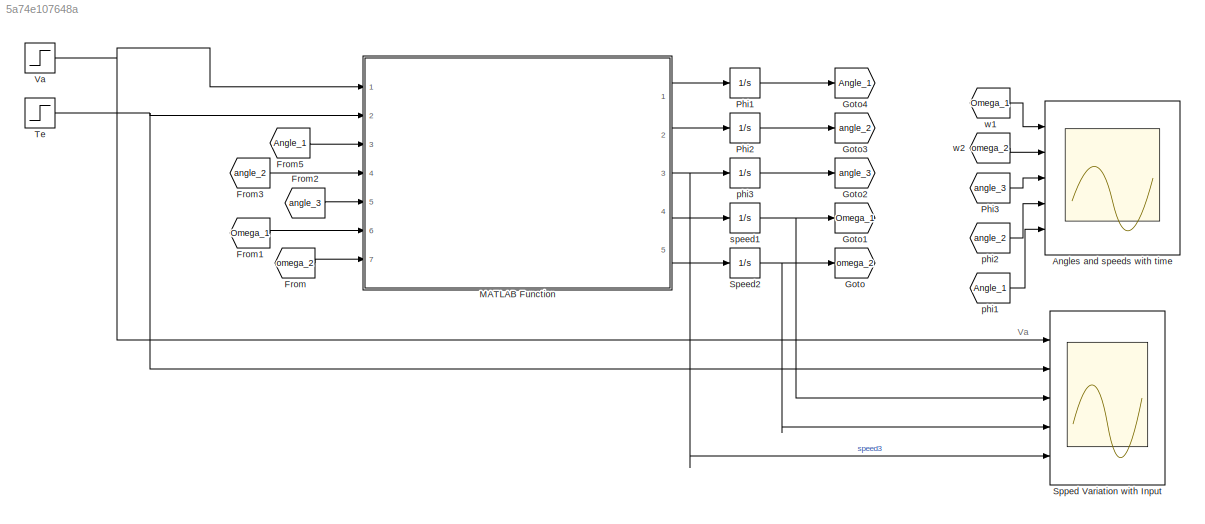
MODEL slx_5a74e107648a
KIND model
CONFIG AbsTol = auto
CONFIG EnableMultiTasking = off
CONFIG FixedStep = auto
CONFIG MaxStep = auto
CONFIG MinStep = auto
CONFIG RelTol = 1e-3
CONFIG SampleTimeConstraint = Unconstrained
CONFIG Solver = VariableStepAuto
CONFIG SolverName = VariableStepAuto
CONFIG StartTime = 0.0
CONFIG StopTime = 10
BLOCK [Scope] Angles and speeds with time
  Floating = off
  NumInputPorts = 5
  Ports = [5]
  ScopeSpecificationString = Simulink.scopes.TimeScopeBlockCfg('CurrentConfiguration', extmgr.ConfigurationSet(extmgr.Configuration('Core','General UI',true),extmgr.Configuration('Core','Source UI',true),extmgr.Configuration('Sources','WiredSimulink',true),extmgr.Configuration('Visuals','Time Domain',true,'SerializedDisplays',{struct('MinYLimReal','-16.99816','MaxYLimReal','48.28888','YLabelReal','','MinYLimMag','0.00000','Ma...<+1406ch>
BLOCK [From] From
  GotoTag = omega_2
BLOCK [From] From1
  GotoTag = Omega_1
BLOCK [From] From2
  GotoTag = angle_3
BLOCK [From] From3
  GotoTag = angle_2
BLOCK [From] From5
  GotoTag = Angle_1
BLOCK [Goto] Goto
  GotoTag = omega_2
BLOCK [Goto] Goto1
  GotoTag = Omega_1
BLOCK [Goto] Goto2
  GotoTag = angle_3
BLOCK [Goto] Goto3
  GotoTag = angle_2
BLOCK [Goto] Goto4
  GotoTag = Angle_1
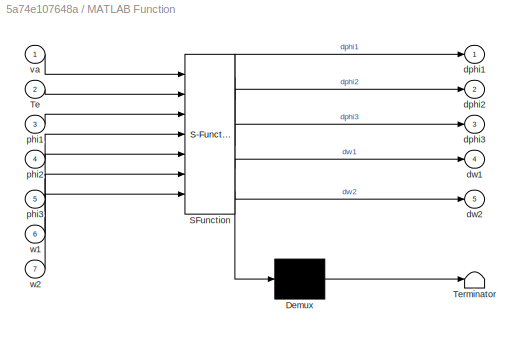
BLOCK [SubSystem] MATLAB Function
  ErrorFcn = Stateflow.Translate.translate
  PermitHierarchicalResolution = ExplicitOnly
  Ports = [7, 5]
  RequestExecContextInheritance = off
  SFBlockType = MATLAB Function
  TreatAsAtomicUnit = on
BLOCK [Demux] MATLAB Function/ Demux 
  Outputs = 1
  Ports = [1, 1]
BLOCK [S-Function] MATLAB Function/ SFunction 
  EnableBusSupport = on
  FunctionName = sf_sfun
  PortCounts = [7 6]
  Ports = [7, 6]
  SFcnIsStateOwnerBlock = off
  SFunctionDeploymentMode = off
  Tag = Stateflow S-Function Assignment_1 2
BLOCK [Terminator] MATLAB Function/ Terminator 
BLOCK [Inport] MATLAB Function/Te
  IconDisplay = Port number
  Port = 2
BLOCK [Outport] MATLAB Function/dphi1
  IconDisplay = Port number
BLOCK [Outport] MATLAB Function/dphi2
  IconDisplay = Port number
  Port = 2
BLOCK [Outport] MATLAB Function/dphi3
  IconDisplay = Port number
  Port = 3
BLOCK [Outport] MATLAB Function/dw1
  IconDisplay = Port number
  Port = 4
BLOCK [Outport] MATLAB Function/dw2
  IconDisplay = Port number
  Port = 5
BLOCK [Inport] MATLAB Function/phi1
  IconDisplay = Port number
  Port = 3
BLOCK [Inport] MATLAB Function/phi2
  IconDisplay = Port number
  Port = 4
BLOCK [Inport] MATLAB Function/phi3
  IconDisplay = Port number
  Port = 5
BLOCK [Inport] MATLAB Function/va
  IconDisplay = Port number
BLOCK [Inport] MATLAB Function/w1
  IconDisplay = Port number
  Port = 6
BLOCK [Inport] MATLAB Function/w2
  IconDisplay = Port number
  Port = 7
BLOCK [Integrator] Phi1
  Ports = [1, 1]
BLOCK [Integrator] Phi2
  Ports = [1, 1]
BLOCK [From] Phi3
  GotoTag = angle_3
BLOCK [Integrator] Speed2
  Ports = [1, 1]
BLOCK [Scope] Spped Variation with Input
  Floating = off
  NumInputPorts = 5
  Ports = [5]
  ScopeSpecificationString = Simulink.scopes.TimeScopeBlockCfg('CurrentConfiguration', extmgr.ConfigurationSet(extmgr.Configuration('Core','General UI',true),extmgr.Configuration('Core','Source UI',true),extmgr.Configuration('Sources','WiredSimulink',true,'DataLoggingVariableName','ScopeData1'),extmgr.Configuration('Visuals','Time Domain',true,'SerializedDisplays',{struct('MinYLimReal','-1.25','MaxYLimReal','11.25','YLabelRea...<+4849ch>
BLOCK [Step] Te 
  After = -0.1
  SampleTime = 0
  Time = 4
BLOCK [Step] Va 
  After = 10
  SampleTime = 0
BLOCK [From] phi1
  GotoTag = Angle_1
BLOCK [From] phi2
  GotoTag = angle_2
BLOCK [Integrator] phi3
  Ports = [1, 1]
BLOCK [Integrator] speed1
  Ports = [1, 1]
BLOCK [From] w1
  GotoTag = Omega_1
BLOCK [From] w2
  GotoTag = omega_2
ANNOTATION (root): Va
LINE From1:1 -> MATLAB Function:6
LINE From2:1 -> MATLAB Function:5
LINE From3:1 -> MATLAB Function:4
LINE From5:1 -> MATLAB Function:3
LINE From:1 -> MATLAB Function:7
LINE MATLAB Function:1 -> Phi1:1
LINE MATLAB Function:2 -> Phi2:1
NET MATLAB Function:3 -> Spped Variation with Input:5, phi3:1
LINE MATLAB Function:4 -> speed1:1
LINE MATLAB Function:5 -> Speed2:1
LINE Phi1:1 -> Goto4:1
LINE Phi2:1 -> Goto3:1
LINE Phi3:1 -> Angles and speeds with time:3
NET Speed2:1 -> Goto:1, Spped Variation with Input:4
NET Te :1 -> MATLAB Function:2, Spped Variation with Input:2
NET Va :1 -> MATLAB Function:1, Spped Variation with Input:1
LINE phi1:1 -> Angles and speeds with time:5
LINE phi2:1 -> Angles and speeds with time:4
LINE phi3:1 -> Goto2:1
NET speed1:1 -> Goto1:1, Spped Variation with Input:3
LINE w1:1 -> Angles and speeds with time:1
LINE w2:1 -> Angles and speeds with time:2
note: NET lines group one-source signal fan-out (src -> all destinations, sorted); 1:1 wires keep LINE
CHART MATLAB Function states=1 transitions=1
  STATE_LABEL 'eML_blk_kernel()'
  STATE_LABEL 'SCRIPT:\nfunction [dphi1,dphi2,dphi3,dw1,dw2] = fcn(va, Te,phi1,phi2,phi3,w1,w2)\n\nR = 1;\nke = 0.1;\nkt = ke;\nj1 = 10e-5;\nj2 = 4*j1;\nB = 2*10e-3\nD1 = 20;\nD2 = 2;\n\n\ndw1 = ((-kt*ke*w1)/(R*j1))- ((D1/j1)*(phi1 -phi2))+((va*kt)/(j1*R));\ndw2 = ((D1/j2)*(phi1 - phi2)) - ((D2/j2)*(phi2-phi3));\ndphi1 = w1;\ndphi2 = w2;\ndphi3 = ((D2/B)*(phi2 - phi3))+ (Te/B)\nend\n'
